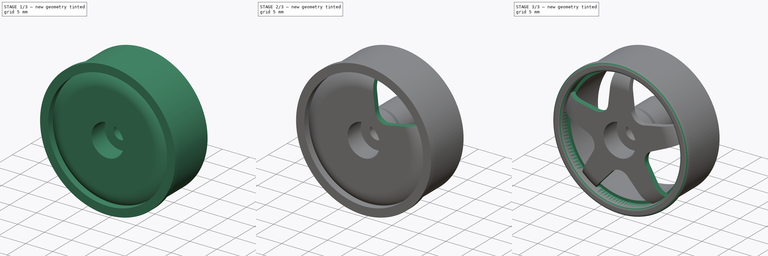
[diagram: build sequence overview — one tinted view per stage of 3, left to right]
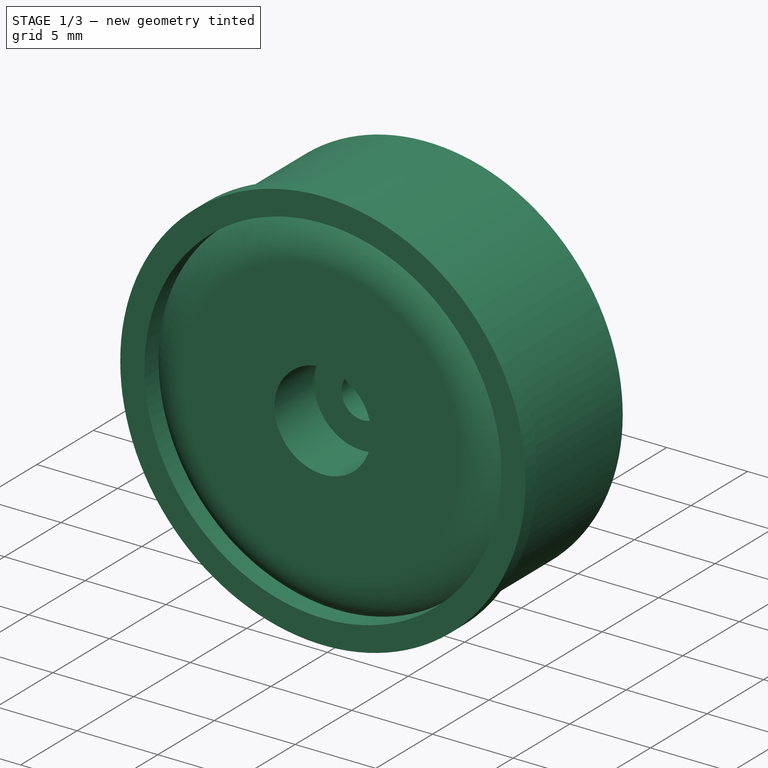
[diagram: stage 1 of 3 — iso view after this stage's code; geometry added in this stage tinted green]
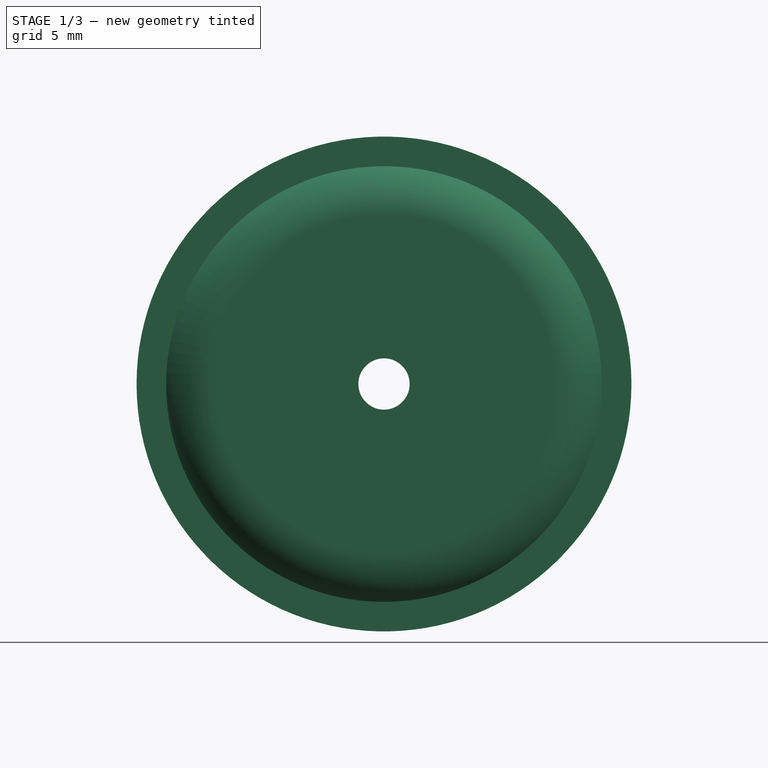
[diagram: stage 1 of 3 — front view after this stage's code; geometry added in this stage tinted green]
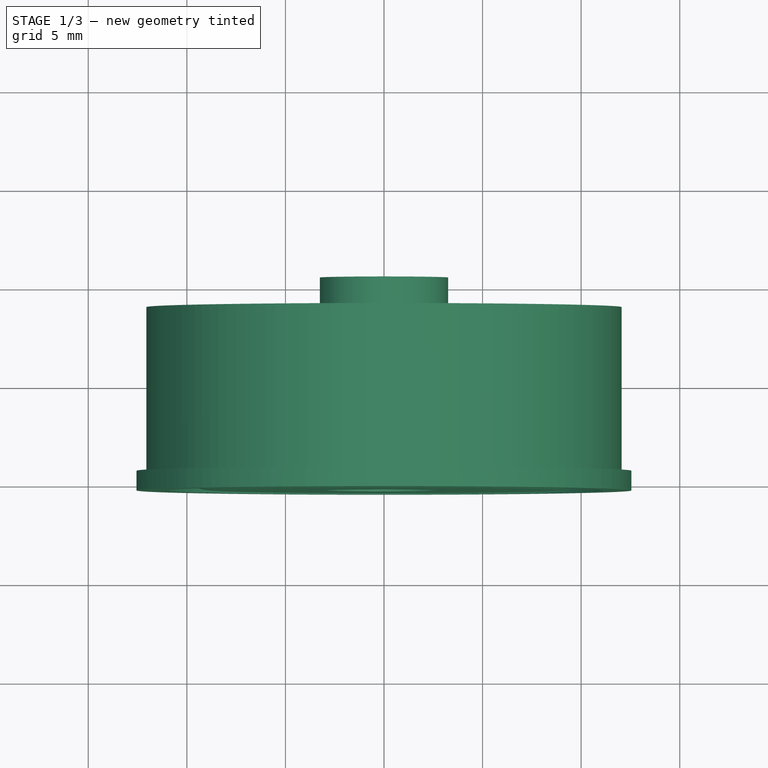
[diagram: stage 1 of 3 — top view after this stage's code; geometry added in this stage tinted green]
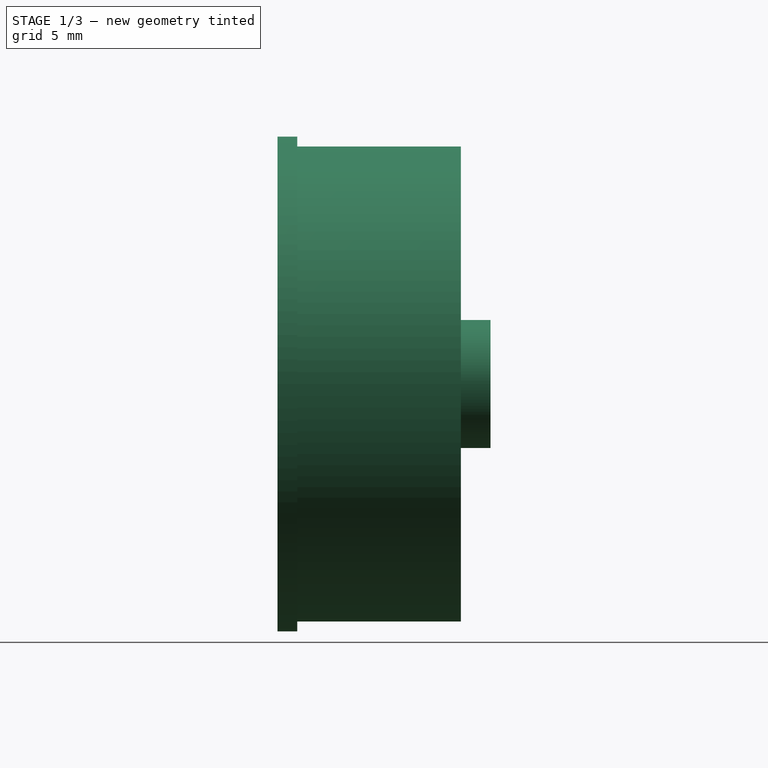
[diagram: stage 1 of 3 — right view after this stage's code; geometry added in this stage tinted green]
FCSTD DOCUMENT  (FreeCAD 1.0R39285 (Git))
Label: 5SpokeRim2
License: All rights reserved
LicenseURL: https://en.wikipedia.org/wiki/All_rights_reserved
objects: Sketcher::SketchObject×3, PartDesign::Revolution×2, App::Link×1, PartDesign::Pocket×1, PartDesign::PolarPattern×1, PartDesign::Fillet×1, PartDesign::Body×1
note: 21 computed .brp shape members not serialized (recipe doc carries the construction recipe); baked Part::Feature solids carry a one-line shape summary decoded from their .brp
EXTERNAL_REF file=../../../../Dimentions.FCStd obj=dd002

FEATURE [Sketcher::SketchObject] Sketch
  ArcFitTolerance = 1e-06
  AttachmentSupport = -> [XY_Plane]
  FullyConstrained = true
  MakeInternals = false
  MapMode = 5
  expr: Constraints[33] = <<Wheel>>.SingleThickness
  expr: Constraints[34] = <<Wheel>>.RimDiameter
  expr: Constraints[35] = <<Wheel>>.StemDiameter
  expr: Constraints[36] = <<Wheel>>.StemPoke
  expr: Constraints[37] = <<Wheel>>.AxelHoleDiameter
  expr: Constraints[48] = <<Wheel>>.HubDip
  sketch-geometry (18):
    g0: LineSegment [constr] StartX=-1.3 StartY=5.4 StartZ=0 EndX=-1.3 EndY=-5.4 EndZ=0
    g1: LineSegment [constr] StartX=-1.3 StartY=-5.4 StartZ=0 EndX=-12.55 EndY=-5.4 EndZ=0
    g2: LineSegment [constr] StartX=-12.55 StartY=-5.4 StartZ=0 EndX=-12.55 EndY=3.9 EndZ=0
    g3: LineSegment [constr] StartX=-12.55 StartY=3.9 StartZ=0 EndX=-3.25 EndY=3.9 EndZ=0
    g4: LineSegment [constr] StartX=-3.25 StartY=3.9 StartZ=0 EndX=-3.25 EndY=5.4 EndZ=0
    g5: LineSegment [constr] StartX=-3.25 StartY=5.4 StartZ=0 EndX=-1.3 EndY=5.4 EndZ=0
    g6: LineSegment [constr] StartX=1.3 StartY=5.4 StartZ=0 EndX=1.3 EndY=-5.4 EndZ=0
    g7: LineSegment [constr] StartX=1.3 StartY=-5.4 StartZ=0 EndX=12.55 EndY=-5.4 EndZ=0
    g8: LineSegment [constr] StartX=12.55 StartY=-5.4 StartZ=0 EndX=12.55 EndY=3.9 EndZ=0
    g9: LineSegment [constr] StartX=12.55 StartY=3.9 StartZ=0 EndX=11.05 EndY=3.9 EndZ=0
    g10: LineSegment [constr] StartX=11.05 StartY=3.9 StartZ=0 EndX=11.05 EndY=-1.4 EndZ=0
    g11: LineSegment [constr] StartX=11.05 StartY=-1.4 StartZ=0 EndX=3.25 EndY=-1.4 EndZ=0
    g12: LineSegment [constr] StartX=3.25 StartY=-1.4 StartZ=0 EndX=3.25 EndY=5.4 EndZ=0
    g13: LineSegment StartX=3.25 StartY=5.4 StartZ=0 EndX=1.3 EndY=5.4 EndZ=0
    g14: LineSegment [constr] StartX=11.05 StartY=-1.4 StartZ=0 EndX=11.05 EndY=-5.4 EndZ=0
    g15: LineSegment StartX=1.3 StartY=5.4 StartZ=0 EndX=1.3 EndY=-1.9 EndZ=0
    g16: LineSegment StartX=1.3 StartY=-1.9 StartZ=0 EndX=3.25 EndY=-1.9 EndZ=0
    g17: LineSegment StartX=3.25 StartY=5.4 StartZ=0 EndX=3.25 EndY=-1.9 EndZ=0
  constraints (51):
    c: Vertical(g0)
    c: Coincident(g0,g1)
    c: Horizontal(g1)
    c: Coincident(g1,g2)
    c: Vertical(g2)
    c: Coincident(g2,g3)
    c: Horizontal(g3)
    c: Coincident(g3,g4)
    c: Vertical(g4)
    c: Coincident(g4,g5)
    c: Coincident(g5,g0)
    c: Horizontal(g5)
    c: Coincident(g6,g7)
    c: Horizontal(g7)
    c: Coincident(g7,g8)
    c: Vertical(g8)
    c: Coincident(g8,g9)
    c: Horizontal(g9)
    c: Coincident(g9,g10)
    c: Vertical(g10)
    c: Coincident(g10,g11)
    c: Horizontal(g11)
    c: Coincident(g11,g12)
    c: Vertical(g12)
    c: Coincident(g12,g13)
    c: Coincident(g13,g6)
    c: Symmetric(g0,g6,g-2)
    c: Horizontal(g13)
    c: Equal(g13,g5)
    c: Symmetric(g6,g6,g-1)
    c: Equal(g0,g6)
    c: Equal(g2,g8)
    c: Equal(g1,g7)
    c: DistanceY(g6,g6) = 10.8
    c: DistanceX(g1,g7) = 25.1
    c: Distance(g4,g12) = 6.5
    c: DistanceY(g9,g12) = 1.5
    c: Distance(g0,g6) = 2.6
    c: DistanceX(g10,g7) = 1.5
    c: Coincident(g14,g10)
    c: Vertical(g14)
    c: DistanceY(g14,g14) = 4
    c: Coincident(g6,g15)
    c: PointOnObject(g15,g6)
    c: Coincident(g15,g16)
    c: Horizontal(g16)
    c: Coincident(g12,g17)
    c: PointOnObject(g17,g12)
    c: DistanceY(g6,g15) = 3.5
    c: Coincident(g16,g17)
    c: PointOnObject(g14,g7)
FEATURE [PartDesign::Revolution] Revolution
  Angle = 360
  Angle2 = 60
  Axis = (0,1,0)
  Base = (0,0,0)
  Profile = -> Sketch
  ReferenceAxis = -> Sketch [V_Axis]
  Refine = true
  Reversed = true
  Suppressed = false
  Type = 0
FEATURE [App::Link] Link  label="Wheel"
  LinkedObject = -> <external ../../../../Dimentions.FCStd>#dd002
FEATURE [Sketcher::SketchObject] Sketch001
  ArcFitTolerance = 1e-06
  AttachmentSupport = -> [XY_Plane]
  ExternalGeometry = -> [Revolution]
  FullyConstrained = true
  MakeInternals = false
  MapMode = 5
  expr: Constraints[32] = <<Wheel>>.RimDiameter
  expr: Constraints[62] = <<Wheel>>.StemPoke
  sketch-geometry (27):
    g0: LineSegment [constr] StartX=11.05 StartY=5.4 StartZ=0 EndX=11.05 EndY=-5.4 EndZ=0
    g1: LineSegment StartX=11.05 StartY=-5.4 StartZ=0 EndX=12.55 EndY=-5.4 EndZ=0
    g2: LineSegment StartX=12.55 StartY=-5.4 StartZ=0 EndX=12.55 EndY=-4.4 EndZ=0
    g3: LineSegment StartX=12.55 StartY=-4.4 StartZ=0 EndX=12.05 EndY=-4.4 EndZ=0
    g4: LineSegment [constr] StartX=12.05 StartY=-4.4 StartZ=0 EndX=12.05 EndY=5.4 EndZ=0
    g5: LineSegment [constr] StartX=12.05 StartY=5.4 StartZ=0 EndX=11.05 EndY=5.4 EndZ=0
    g6: LineSegment [constr] StartX=-11.05 StartY=5.4 StartZ=0 EndX=-11.05 EndY=-5.4 EndZ=0
    g7: LineSegment [constr] StartX=-11.05 StartY=-5.4 StartZ=0 EndX=-12.55 EndY=-5.4 EndZ=0
    g8: LineSegment [constr] StartX=-12.55 StartY=-5.4 StartZ=0 EndX=-12.55 EndY=-4.4 EndZ=0
    g9: LineSegment [constr] StartX=-12.55 StartY=-4.4 StartZ=0 EndX=-12.05 EndY=-4.4 EndZ=0
    g10: LineSegment [constr] StartX=-12.05 StartY=-4.4 StartZ=0 EndX=-12.05 EndY=5.4 EndZ=0
    g11: LineSegment [constr] StartX=-12.05 StartY=5.4 StartZ=0 EndX=-11.05 EndY=5.4 EndZ=0
    g12: LineSegment [constr] StartX=-3 StartY=-1.9 StartZ=0 EndX=3 EndY=-1.9 EndZ=0
    g13: LineSegment StartX=3 StartY=-1.9 StartZ=0 EndX=3 EndY=-5.4 EndZ=0
    g14: LineSegment StartX=3 StartY=-5.4 StartZ=0 EndX=8.6133 EndY=-5.4 EndZ=0
    g15: ArcOfCircle CenterX=8.6133 CenterY=-2.4 CenterZ=0 NormalX=0 NormalY=0 NormalZ=1 AngleXU=0 Radius=3 StartAngle=4.71239 EndAngle=5.66036
    g16: ArcOfCircle CenterX=8.6133 CenterY=-1.59222 CenterZ=0 NormalX=0 NormalY=0 NormalZ=1 AngleXU=0 Radius=2.80778 StartAngle=4.71239 EndAngle=5.47355
    g17: LineSegment StartX=8.6133 StartY=-4.4 StartZ=0 EndX=3.75 EndY=-4.4 EndZ=0
    g18: LineSegment StartX=3.75 StartY=-4.4 StartZ=0 EndX=3.75 EndY=-1.15 EndZ=0
    g19: LineSegment StartX=3.75 StartY=-1.15 StartZ=0 EndX=3.25 EndY=0 EndZ=0
    g20: LineSegment StartX=3.25 StartY=0 StartZ=0 EndX=3.25 EndY=-1.9 EndZ=0
    g21: LineSegment StartX=3.25 StartY=-1.9 StartZ=0 EndX=3 EndY=-1.9 EndZ=0
    g22: LineSegment StartX=10.55 StartY=-3.62515 StartZ=0 EndX=10.55 EndY=3.9 EndZ=0
    g23: LineSegment StartX=10.55 StartY=3.9 StartZ=0 EndX=12.05 EndY=3.9 EndZ=0
    g24: LineSegment StartX=12.05 StartY=3.9 StartZ=0 EndX=12.05 EndY=-4.4 EndZ=0
    g25: LineSegment StartX=11.05 StartY=-4.15 StartZ=0 EndX=11.05 EndY=-5.4 EndZ=0
    g26: LineSegment [constr] StartX=10.55 StartY=-3.62515 StartZ=0 EndX=11.05 EndY=-4.15 EndZ=0
  constraints (78):
    c: Coincident(g0,g1)
    c: Horizontal(g1)
    c: Coincident(g1,g2)
    c: Vertical(g2)
    c: Coincident(g2,g3)
    c: Horizontal(g3)
    c: Coincident(g3,g4)
    c: Vertical(g4)
    c: Coincident(g4,g5)
    c: Coincident(g5,g0)
    c: Vertical(g6)
    c: Coincident(g6,g7)
    c: Horizontal(g7)
    c: Coincident(g7,g8)
    c: Vertical(g8)
    c: Coincident(g8,g9)
    c: Horizontal(g9)
    c: Coincident(g9,g10)
    c: Vertical(g10)
    c: Coincident(g10,g11)
    c: Coincident(g11,g6)
    c: Horizontal(g11)
    c: Horizontal(g5)
    c: Symmetric(g6,g0,g-2)
    c: Symmetric(g0,g0,g-1)
    c: Equal(g11,g5)
    c: Equal(g4,g10)
    c: Equal(g1,g7)
    c: Equal(g2,g8)
    c: DistanceY(g1,g4) = 10.8
    c: DistanceY(g2,g2) = 1
    c: Distance(g3,g3) = 0.5
    c: DistanceX(g7,g1) = 25.1
    c: DistanceX(g1,g1) = 1.5
    c: Symmetric(g12,g12,g-2)
    c: DistanceX(g12,g12) = 6
    c: Horizontal(g12,g-3)
    c: Coincident(g12,g13)
    c: Vertical(g13)
    c: Coincident(g13,g14)
    c: Horizontal(g14)
    c: Tangent(g14,g15) = -1.5708
    c: Horizontal(g14,g0)
    c: Radius(g15) = 3
    c: Tangent(g16,g17) = 1.5708
    c: Coincident(g17,g18)
    c: Vertical(g18)
    c: Coincident(g18,g19)
    c: Coincident(g19,g20)
    c: Coincident(g20,g-3)
    c: Coincident(g20,g21)
    c: Coincident(g21,g12)
    c: Horizontal(g17)
    c: DistanceY(g13,g17) = 1
    c: Vertical(g22)
    c: Coincident(g23,g22)
    c: PointOnObject(g23,g4)
    c: Coincident(g23,g24)
    c: Coincident(g24,g3)
    c: Coincident(g25,g15)
    c: Coincident(g25,g0)
    c: Horizontal(g23)
    c: DistanceY(g22,g0) = 1.5
    c: DistanceX(g19,g19) = 0.5
    c: DistanceY(g20,g18) = 0.75
    c: Vertical(g20)
    c: PointOnObject(g19,g-1)
    c: DistanceX(g-1,g17) = 3.75
    c: Vertical(g25)
    c: DistanceY(g25,g25) = 1.25
    c: Coincident(g16,g22)
    c: Distance(g23,g23) = 1.5
    c: Vertical(g16,g14)
    c: Coincident(g26,g16)
    c: Coincident(g26,g15)
    c: Perpendicular(g16,g26)
    c: DistanceX(g-1,g1) = 12.55
    c: DistanceX(g-1,g3) = 12.05
FEATURE [PartDesign::Revolution] Revolution001
  Angle = 360
  Angle2 = 60
  Axis = (0,1,0)
  Base = (0,0,0)
  BaseFeature = -> Revolution
  Profile = -> Sketch001
  ReferenceAxis = -> Sketch001 [V_Axis]
  Refine = true
  Reversed = true
  Suppressed = false
  Type = 0
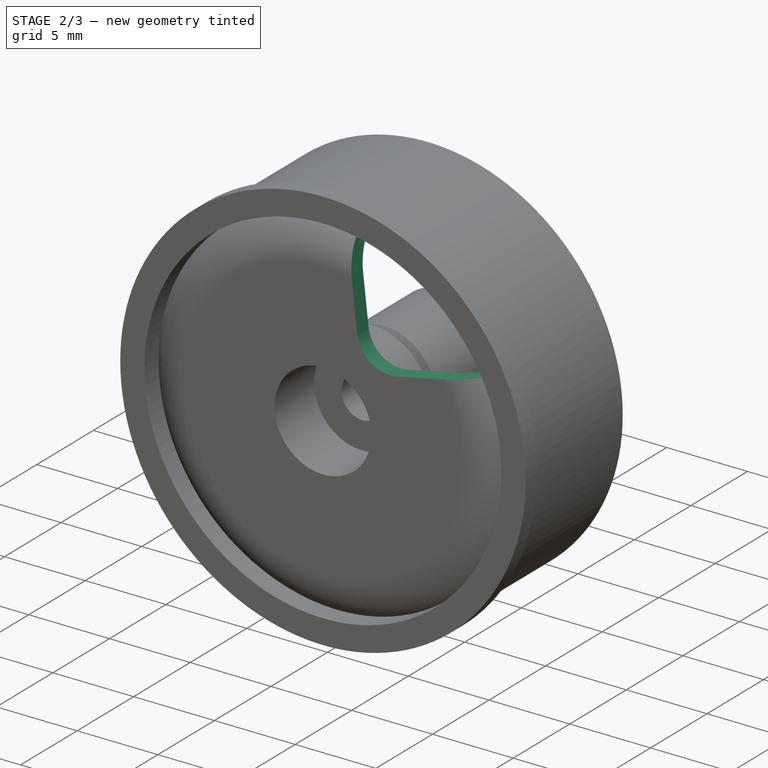
[diagram: stage 2 of 3 — iso view after this stage's code; geometry added in this stage tinted green]
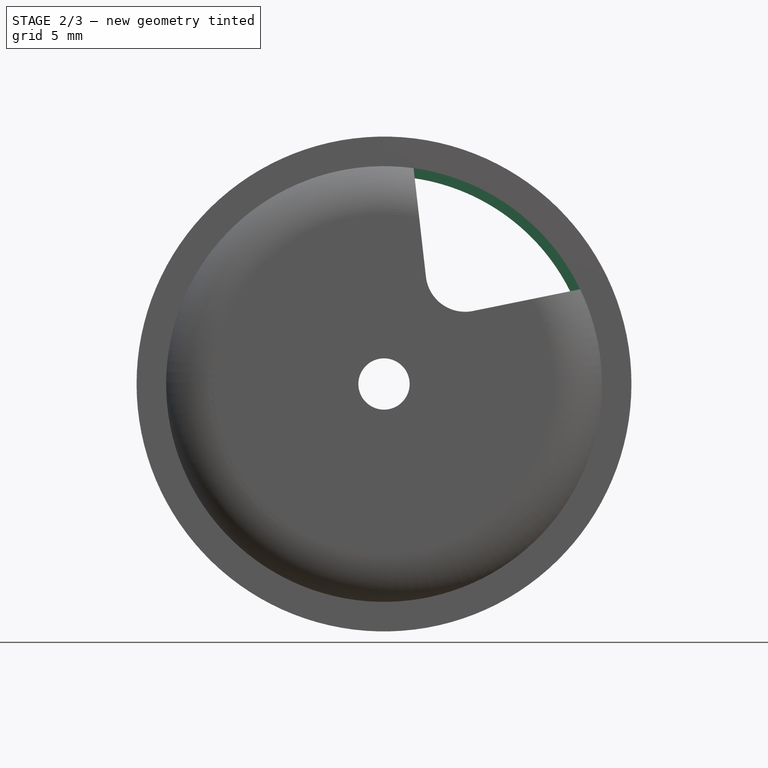
[diagram: stage 2 of 3 — front view after this stage's code; geometry added in this stage tinted green]
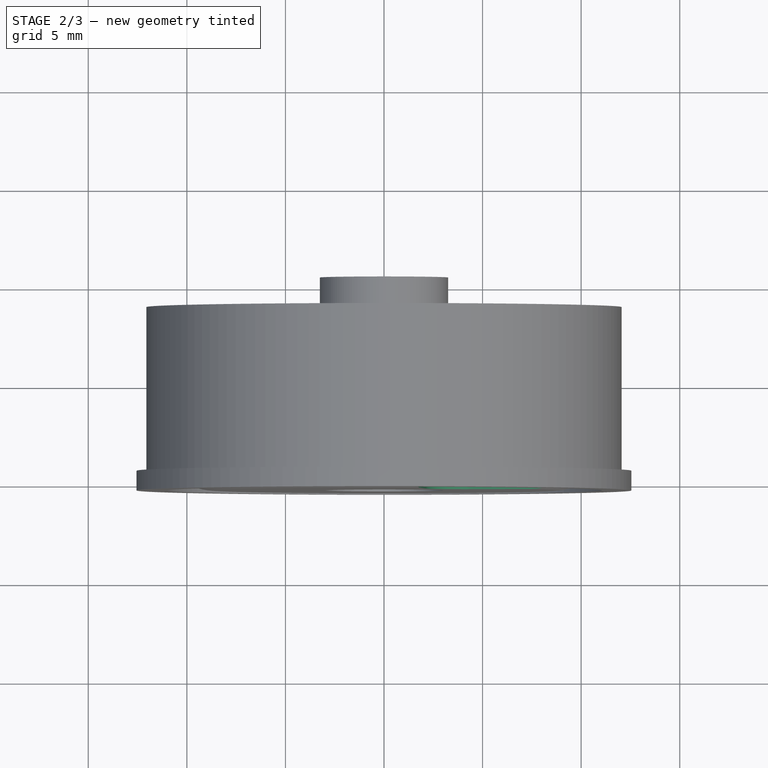
[diagram: stage 2 of 3 — top view after this stage's code; geometry added in this stage tinted green]
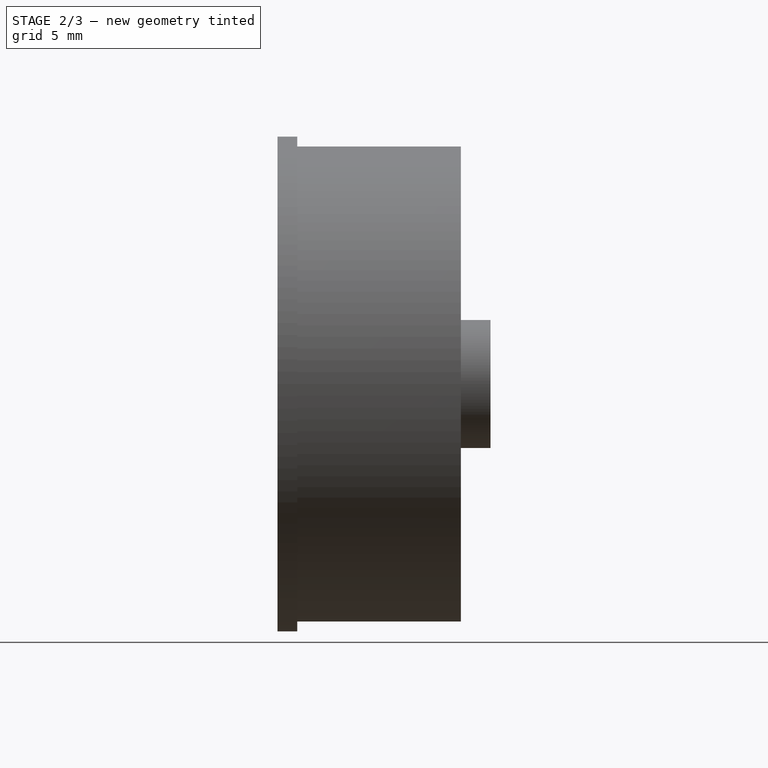
[diagram: stage 2 of 3 — right view after this stage's code; geometry added in this stage tinted green]
FEATURE [Sketcher::SketchObject] Sketch002
  ArcFitTolerance = 1e-06
  AttachmentSupport = -> [Revolution001]
  ExternalGeometry = -> [Revolution001]
  FullyConstrained = true
  MakeInternals = false
  MapMode = 5
  Placement = pos=(0,-5.4,0) rot=(1,0,0;1.5708rad)
  sketch-geometry (8):
    g0: LineSegment [constr] StartX=0 StartY=0 StartZ=0 EndX=10.5092 EndY=3.41464 EndZ=0
    g1: LineSegment StartX=1.5 StartY=10.9477 StartZ=0 EndX=2.12733 EndY=5.43691 EndZ=0
    g2: ArcOfCircle CenterX=4.1145 CenterY=5.66312 CenterZ=0 NormalX=0 NormalY=0 NormalZ=1 AngleXU=0 Radius=2 StartAngle=3.25494 EndAngle=4.91259
    g3: LineSegment StartX=4.51223 StartY=3.70307 StartZ=0 EndX=9.94989 EndY=4.80647 EndZ=0
    g4: LineSegment [constr] StartX=0 StartY=0 StartZ=0 EndX=4.1145 EndY=5.66312 EndZ=0
    g5: ArcOfCircle CenterX=0 CenterY=1e-16 CenterZ=0 NormalX=0 NormalY=0 NormalZ=1 AngleXU=0 Radius=11.05 StartAngle=0.45001 EndAngle=1.43463
    g6: Circle [constr] CenterX=0 CenterY=1e-16 CenterZ=0 NormalX=0 NormalY=0 NormalZ=1 AngleXU=0 Radius=3.75
    g7: LineSegment [constr] StartX=0 StartY=3 StartZ=0 EndX=0 EndY=3.75 EndZ=0
  constraints (23):
    c: PointOnObject(g0,g-3)
    c: Angle(g0,g-2) = 1.25664
    c: Coincident(g0,g-1)
    c: PointOnObject(g1,g-3)
    c: Tangent(g1,g2) = -1.5708
    c: Tangent(g2,g3) = -1.5708
    c: PointOnObject(g3,g-3)
    c: Coincident(g4,g0)
    c: Coincident(g4,g2)
    c: Angle(g4,g-2) = 0.628319
    c: Radius(g2) = 2
    c: Distance(g3,g0) = 1.5
    c: Coincident(g5,g1)
    c: Coincident(g5,g3)
    c: DistanceX(g5,g1) = 1.5
    c: PointOnObject(g5,g-2)
    c: Coincident(g6,g5)
    c: PointOnObject(g7,g-4)
    c: PointOnObject(g7,g6)
    c: PointOnObject(g7,g-2)
    c: PointOnObject(g7,g-2)
    c: DistanceY(g7,g7) = 0.75
    c: Distance(g4,g4) = 7
FEATURE [PartDesign::Pocket] Pocket
  BaseFeature = -> Revolution001
  Direction = (0,1,-2e-16)
  Length = 2
  Length2 = 5
  Profile = -> Sketch002
  ReferenceAxis = -> Sketch002 [N_Axis]
  Refine = true
  Suppressed = false
  Type = 0
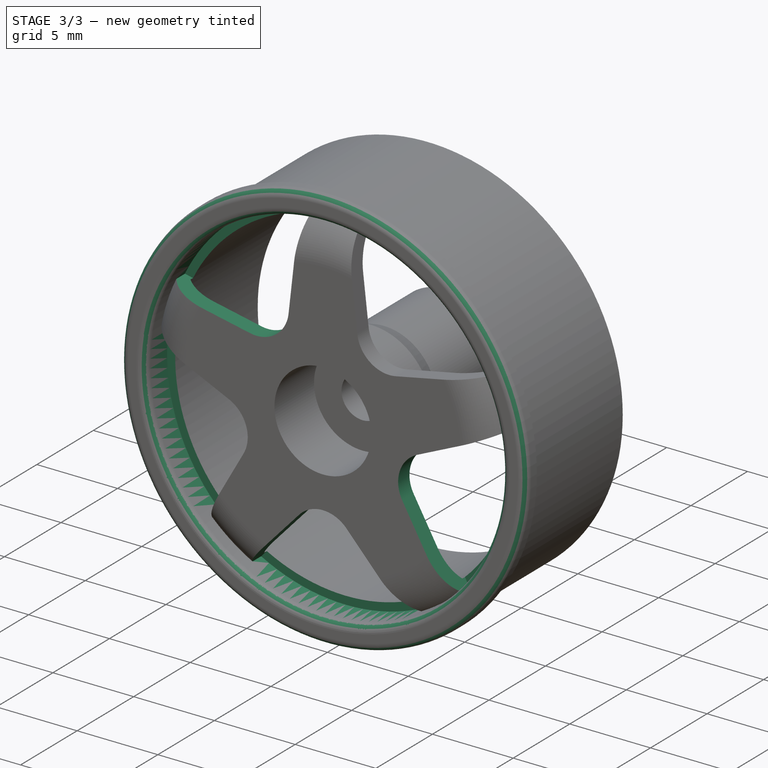
[diagram: stage 3 of 3 — iso view after this stage's code; geometry added in this stage tinted green]
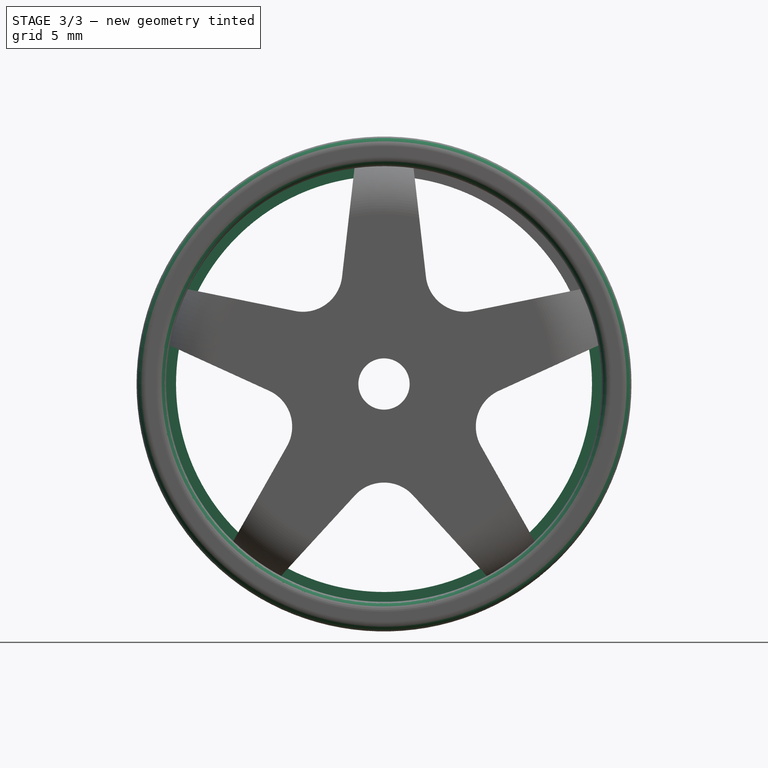
[diagram: stage 3 of 3 — front view after this stage's code; geometry added in this stage tinted green]
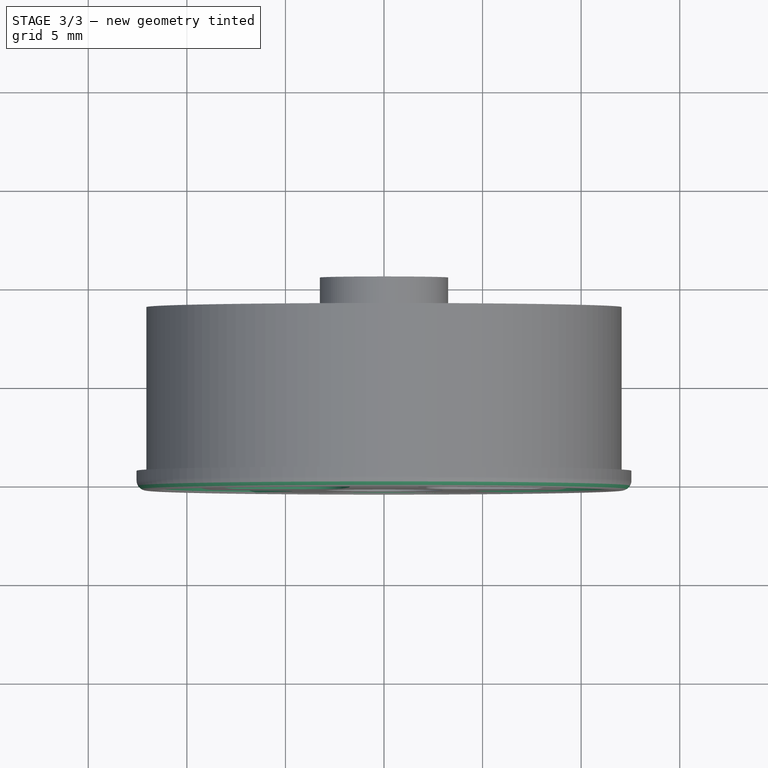
[diagram: stage 3 of 3 — top view after this stage's code; geometry added in this stage tinted green]
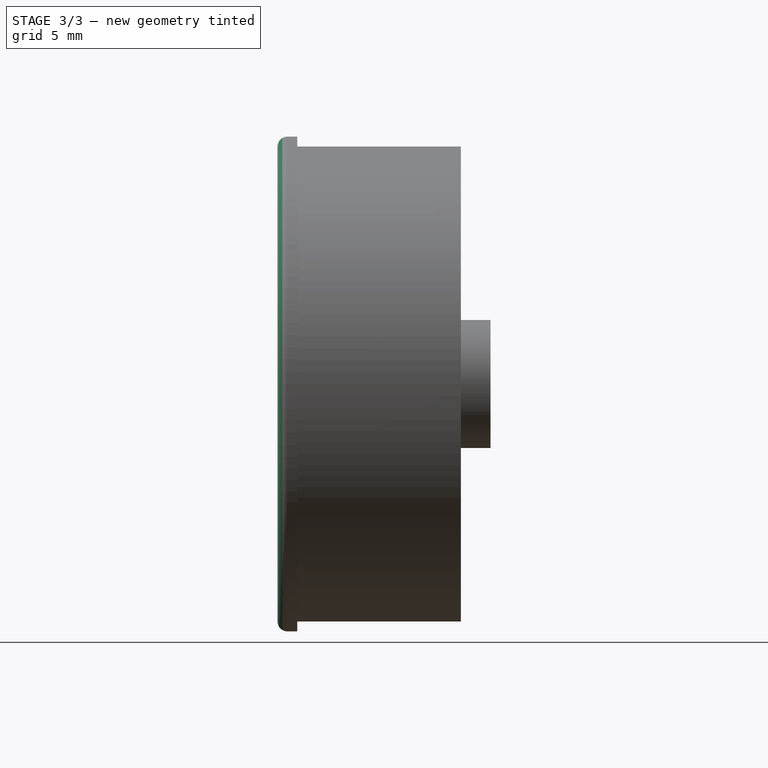
[diagram: stage 3 of 3 — right view after this stage's code; geometry added in this stage tinted green]
FEATURE [PartDesign::PolarPattern] PolarPattern
  Angle = 360
  Axis = -> Sketch002 [N_Axis]
  BaseFeature = -> Pocket
  Mode = 0
  Occurrences = 5
  Offset = 120
  Originals = -> [Pocket]
  Refine = true
  Suppressed = false
  TransformMode = 0
FEATURE [PartDesign::Fillet] Fillet001
  Base = -> PolarPattern [Edge142,Edge141]
  BaseFeature = -> PolarPattern
  Radius = 0.5
  Refine = true
  SupportTransform = false
  Suppressed = false
  UseAllEdges = false
FEATURE [PartDesign::Body] Body  label="5SpokeRim2"
  AllowCompound = false
  Group = -> [Sketch,Revolution,Sketch001,Revolution001,Sketch002,Pocket,PolarPattern,Fillet001]
  Origin = -> Origin
  Tip = -> Fillet001
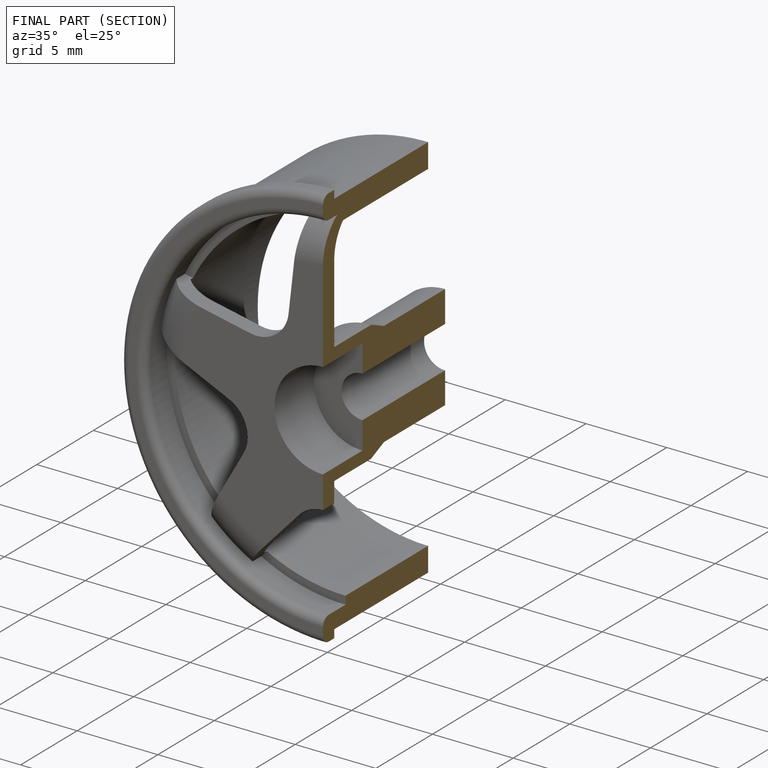
[diagram: finished part — half-section view (interior)]
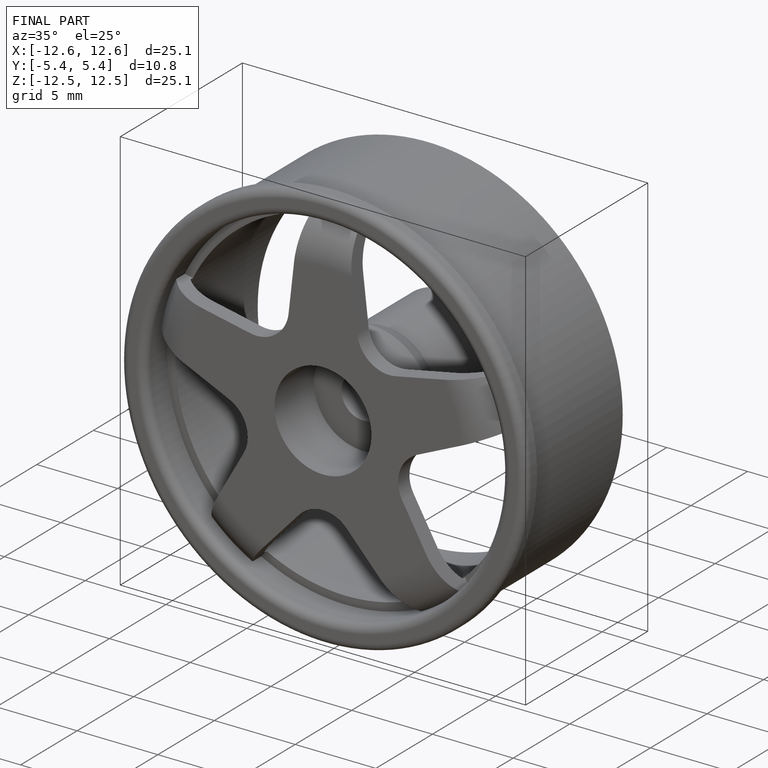
[diagram: finished part — iso view with bounding-box wireframe]
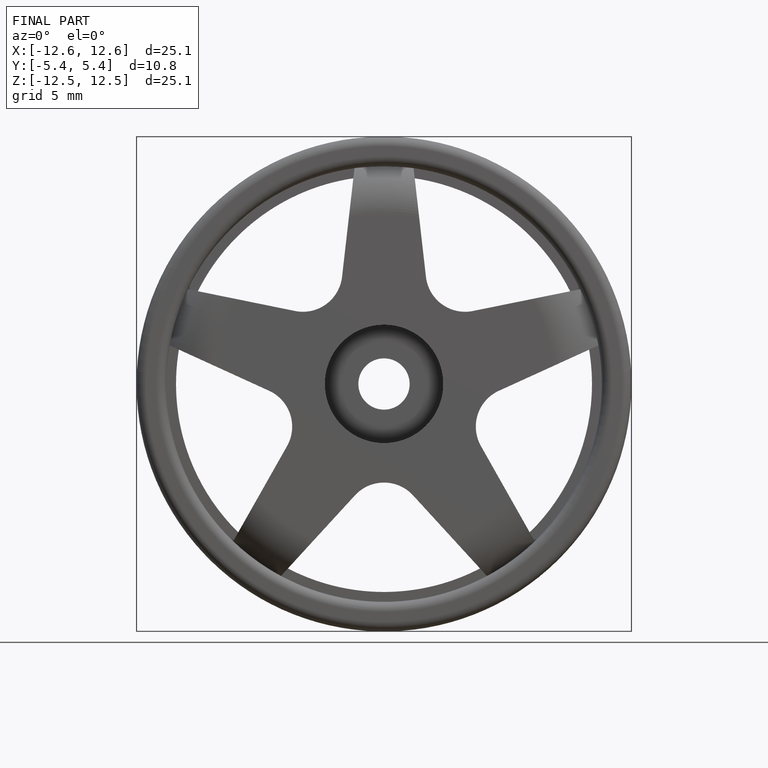
[diagram: finished part — front view with bounding-box wireframe]
